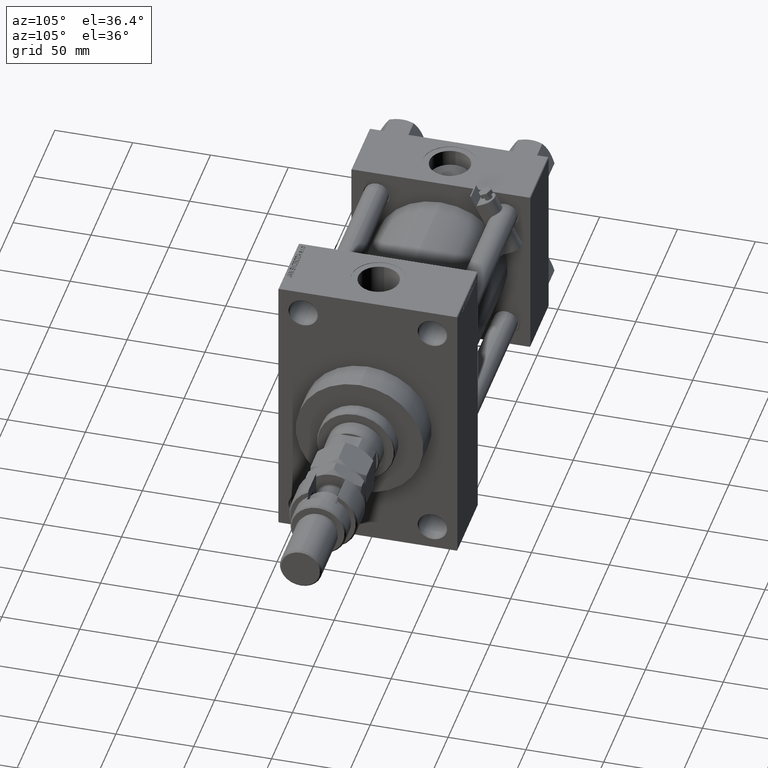
[diagram: clean part render]
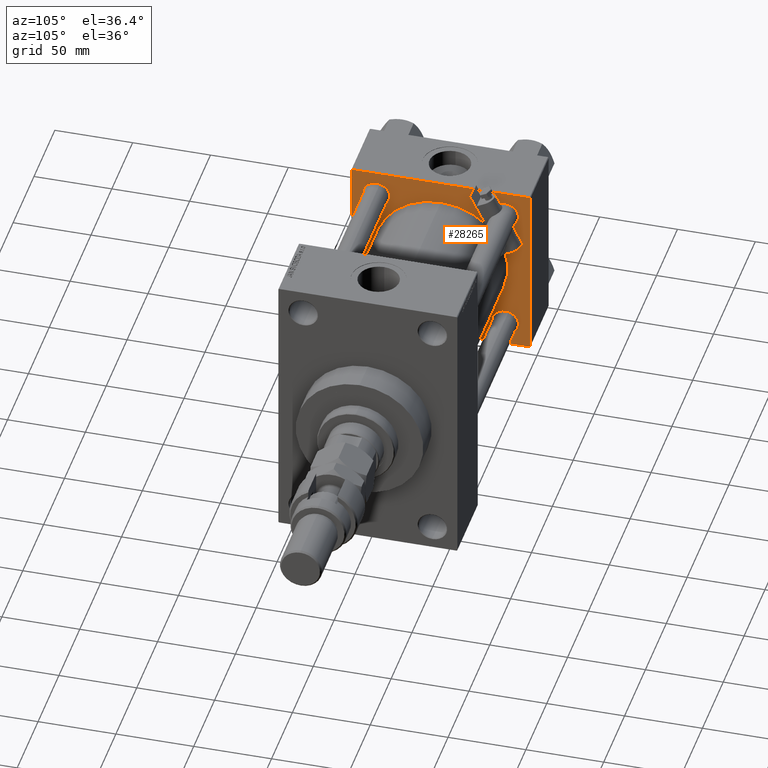
[diagram: same view with one face highlighted and labeled with its STEP entity id]
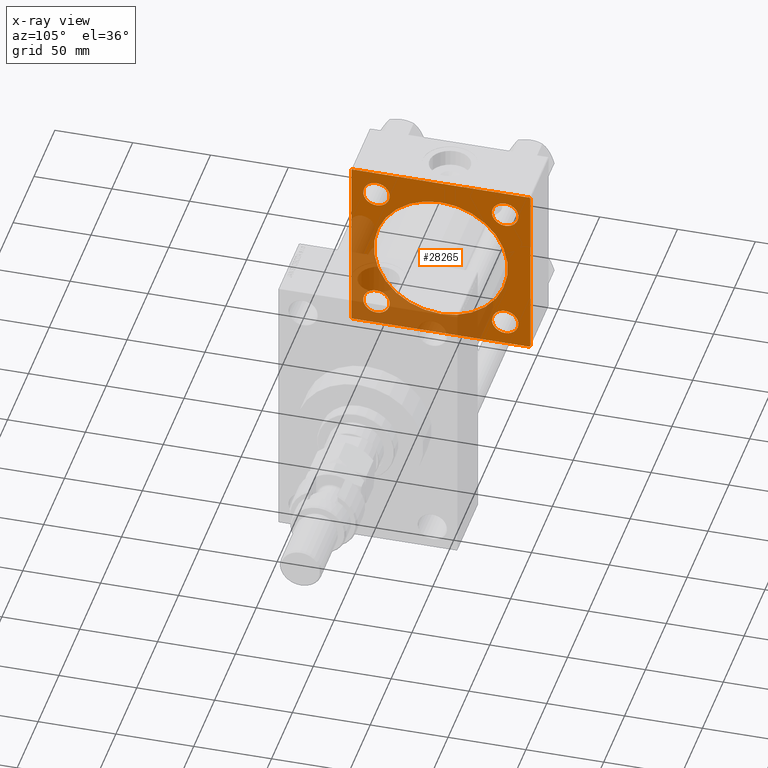
[diagram: x-ray of the same camera — body ghosted, the highlighted face saturated]
A machine part, auxiliary view. The second image highlights one B-rep face of the part: STEP entity #28265.
The next image is the same camera in x-ray: the body ghosted, the highlighted face saturated — about 38% of this face is hidden behind the body in this view.
In plain terms, the highlighted planar face has unit normal (-1, 0, 0).
Its self-contained STEP definition (entity closure, byte-faithful):
#150 = VERTEX_POINT ( 'NONE', #43804 ) ;
#160 = DIRECTION ( 'NONE',  ( 0.000000000000000000, -0.7071067811865573427, 0.7071067811865376918 ) ) ;
#539 = DIRECTION ( 'NONE',  ( 0.000000000000000000, 0.000000000000000000, 1.000000000000000000 ) ) ;
#1040 = AXIS2_PLACEMENT_3D ( 'NONE', #21779, #10552, #37693 ) ;
#1597 = CARTESIAN_POINT ( 'NONE',  ( 43.99999999999998579, 2.663896022368408223E-15, -43.00000000000000000 ) ) ;
#1702 = VERTEX_POINT ( 'NONE', #48117 ) ;
#2136 = VERTEX_POINT ( 'NONE', #38558 ) ;
#2597 = VECTOR ( 'NONE', #16361, 1000.000000000000000 ) ;
#3442 = DIRECTION ( 'NONE',  ( -1.000000000000000000, 0.000000000000000000, -0.000000000000000000 ) ) ;
#4048 = EDGE_CURVE ( 'NONE', #28603, #5955, #39495, .T. ) ;
#4233 = ORIENTED_EDGE ( 'NONE', *, *, #19425, .T. ) ;
#4278 = EDGE_LOOP ( 'NONE', ( #20201, #31155 ) ) ;
#4315 = EDGE_LOOP ( 'NONE', ( #5510, #7306 ) ) ;
#5040 = VERTEX_POINT ( 'NONE', #15763 ) ;
#5375 = ORIENTED_EDGE ( 'NONE', *, *, #28784, .T. ) ;
#5427 = AXIS2_PLACEMENT_3D ( 'NONE', #6863, #3442, #11281 ) ;
#5510 = ORIENTED_EDGE ( 'NONE', *, *, #37571, .T. ) ;
#5955 = VERTEX_POINT ( 'NONE', #40201 ) ;
#5987 = LINE ( 'NONE', #14331, #26862 ) ;
#6863 = CARTESIAN_POINT ( 'NONE',  ( 44.00000000000000000, -41.34999999999998721, -41.35000000000000853 ) ) ;
#6904 = DIRECTION ( 'NONE',  ( 0.000000000000000000, 0.000000000000000000, 1.000000000000000000 ) ) ;
#7020 = LINE ( 'NONE', #38840, #33585 ) ;
#7306 = ORIENTED_EDGE ( 'NONE', *, *, #27952, .T. ) ;
#7654 = VECTOR ( 'NONE', #30574, 1000.000000000000000 ) ;
#7685 = CIRCLE ( 'NONE', #1040, 8.500000000000007105 ) ;
#8014 = CARTESIAN_POINT ( 'NONE',  ( 44.00000000000000000, 57.49999999999999289, -57.49999999999999289 ) ) ;
#8264 = LINE ( 'NONE', #44279, #10444 ) ;
#8427 = FACE_OUTER_BOUND ( 'NONE', #15044, .T. ) ;
#8703 = ORIENTED_EDGE ( 'NONE', *, *, #17140, .T. ) ;
#9070 = EDGE_LOOP ( 'NONE', ( #4233, #42396 ) ) ;
#9172 = VECTOR ( 'NONE', #15755, 1000.000000000000000 ) ;
#9564 = CARTESIAN_POINT ( 'NONE',  ( 44.00000000000000000, 41.34999999999999432, 32.84999999999999432 ) ) ;
#9625 = CIRCLE ( 'NONE', #36281, 43.00000000000000000 ) ;
#10444 = VECTOR ( 'NONE', #160, 1000.000000000000114 ) ;
#10552 = DIRECTION ( 'NONE',  ( -1.000000000000000000, 0.000000000000000000, -0.000000000000000000 ) ) ;
#10652 = DIRECTION ( 'NONE',  ( 0.000000000000000000, 0.000000000000000000, 1.000000000000000000 ) ) ;
#11281 = DIRECTION ( 'NONE',  ( 0.000000000000000000, 0.000000000000000000, 1.000000000000000000 ) ) ;
#11657 = EDGE_LOOP ( 'NONE', ( #13132, #5375 ) ) ;
#12554 = VERTEX_POINT ( 'NONE', #16123 ) ;
#12569 = DIRECTION ( 'NONE',  ( 1.000000000000000000, -0.000000000000000000, 0.000000000000000000 ) ) ;
#12851 = DIRECTION ( 'NONE',  ( -0.000000000000000000, 0.000000000000000000, 1.000000000000000000 ) ) ;
#12987 = CARTESIAN_POINT ( 'NONE',  ( 44.00000000000000000, 41.34999999999999432, 49.85000000000001563 ) ) ;
#13132 = ORIENTED_EDGE ( 'NONE', *, *, #46413, .T. ) ;
#13800 = DIRECTION ( 'NONE',  ( -1.000000000000000000, 0.000000000000000000, -0.000000000000000000 ) ) ;
#14233 = ORIENTED_EDGE ( 'NONE', *, *, #24372, .T. ) ;
#14331 = CARTESIAN_POINT ( 'NONE',  ( 44.00000000000000000, 57.49999999999999289, -57.00000000000000711 ) ) ;
#14656 = CARTESIAN_POINT ( 'NONE',  ( 44.00000000000000000, -57.50000000000000711, 57.49999999999999289 ) ) ;
#14730 = ORIENTED_EDGE ( 'NONE', *, *, #26098, .T. ) ;
#14918 = VERTEX_POINT ( 'NONE', #46722 ) ;
#15044 = EDGE_LOOP ( 'NONE', ( #27816, #51490, #51448, #24098, #39213, #14730, #20187, #8703 ) ) ;
#15280 = CARTESIAN_POINT ( 'NONE',  ( 44.00000000000000000, 57.00000000000002132, -57.49999999999999289 ) ) ;
#15755 = DIRECTION ( 'NONE',  ( 0.000000000000000000, -1.000000000000000000, -1.206764157201257045E-16 ) ) ;
#15763 = CARTESIAN_POINT ( 'NONE',  ( 44.00000000000000000, -41.34999999999998721, -32.85000000000000142 ) ) ;
#16064 = LINE ( 'NONE', #23367, #23598 ) ;
#16123 = CARTESIAN_POINT ( 'NONE',  ( 44.00000000000000000, 41.34999999999999432, -49.85000000000001563 ) ) ;
#16265 = CARTESIAN_POINT ( 'NONE',  ( 44.00000000000000000, 0.000000000000000000, 0.000000000000000000 ) ) ;
#16361 = DIRECTION ( 'NONE',  ( 0.000000000000000000, -1.000000000000000000, -1.206764157201257045E-16 ) ) ;
#16747 = DIRECTION ( 'NONE',  ( 0.000000000000000000, 0.000000000000000000, 1.000000000000000000 ) ) ;
#16771 = PLANE ( 'NONE',  #21402 ) ;
#16780 = EDGE_CURVE ( 'NONE', #2136, #14918, #16064, .T. ) ;
#17140 = EDGE_CURVE ( 'NONE', #36875, #48812, #7020, .T. ) ;
#17942 = DIRECTION ( 'NONE',  ( -1.000000000000000000, 0.000000000000000000, -0.000000000000000000 ) ) ;
#18072 = VERTEX_POINT ( 'NONE', #31916 ) ;
#18188 = CARTESIAN_POINT ( 'NONE',  ( 44.00000000000000000, -41.34999999999998721, 41.35000000000000853 ) ) ;
#18584 = LINE ( 'NONE', #14656, #7654 ) ;
#18676 = EDGE_CURVE ( 'NONE', #150, #12554, #31166, .T. ) ;
#19021 = DIRECTION ( 'NONE',  ( 0.000000000000000000, 0.7071067811865474617, -0.7071067811865474617 ) ) ;
#19425 = EDGE_CURVE ( 'NONE', #12554, #150, #23677, .T. ) ;
#19475 = EDGE_LOOP ( 'NONE', ( #20653, #14233 ) ) ;
#19680 = CARTESIAN_POINT ( 'NONE',  ( 44.00000000000000000, 57.49999999999999289, 57.50000000000000711 ) ) ;
#20179 = DIRECTION ( 'NONE',  ( -1.000000000000000000, 0.000000000000000000, -0.000000000000000000 ) ) ;
#20187 = ORIENTED_EDGE ( 'NONE', *, *, #43051, .T. ) ;
#20201 = ORIENTED_EDGE ( 'NONE', *, *, #50830, .F. ) ;
#20280 = LINE ( 'NONE', #8014, #2597 ) ;
#20653 = ORIENTED_EDGE ( 'NONE', *, *, #43948, .T. ) ;
#21161 = VERTEX_POINT ( 'NONE', #15280 ) ;
#21402 = AXIS2_PLACEMENT_3D ( 'NONE', #16265, #20179, #12851 ) ;
#21779 = CARTESIAN_POINT ( 'NONE',  ( 44.00000000000000000, -41.34999999999998721, -41.35000000000000853 ) ) ;
#22253 = CARTESIAN_POINT ( 'NONE',  ( 44.00000000000000000, 57.00000000000000711, 57.50000000000000711 ) ) ;
#22719 = VERTEX_POINT ( 'NONE', #47447 ) ;
#23367 = CARTESIAN_POINT ( 'NONE',  ( 44.00000000000000000, 57.49999999999999289, 57.50000000000000711 ) ) ;
#23598 = VECTOR ( 'NONE', #32236, 1000.000000000000000 ) ;
#23677 = CIRCLE ( 'NONE', #41152, 8.500000000000007105 ) ;
#23827 = FACE_BOUND ( 'NONE', #4278, .T. ) ;
#24098 = ORIENTED_EDGE ( 'NONE', *, *, #24844, .T. ) ;
#24191 = DIRECTION ( 'NONE',  ( -0.000000000000000000, -0.7071067811865376918, -0.7071067811865573427 ) ) ;
#24372 = EDGE_CURVE ( 'NONE', #5040, #41285, #37075, .T. ) ;
#24648 = VECTOR ( 'NONE', #24191, 1000.000000000000114 ) ;
#24677 = VERTEX_POINT ( 'NONE', #48244 ) ;
#24708 = CARTESIAN_POINT ( 'NONE',  ( 44.00000000000000000, -57.50000000000000711, 57.00000000000000711 ) ) ;
#24844 = EDGE_CURVE ( 'NONE', #2136, #28603, #8264, .T. ) ;
#25513 = CARTESIAN_POINT ( 'NONE',  ( 44.00000000000000000, 41.34999999999999432, -41.35000000000000142 ) ) ;
#25766 = DIRECTION ( 'NONE',  ( 0.000000000000000000, 0.000000000000000000, 1.000000000000000000 ) ) ;
#26098 = EDGE_CURVE ( 'NONE', #5955, #18072, #47933, .T. ) ;
#26186 = AXIS2_PLACEMENT_3D ( 'NONE', #50463, #33772, #6904 ) ;
#26324 = CARTESIAN_POINT ( 'NONE',  ( 44.00000000000000000, 41.34999999999999432, 41.35000000000000142 ) ) ;
#26862 = VECTOR ( 'NONE', #30251, 1000.000000000000114 ) ;
#27525 = VERTEX_POINT ( 'NONE', #1597 ) ;
#27631 = AXIS2_PLACEMENT_3D ( 'NONE', #35592, #31701, #39774 ) ;
#27750 = FACE_BOUND ( 'NONE', #4315, .T. ) ;
#27816 = ORIENTED_EDGE ( 'NONE', *, *, #37323, .F. ) ;
#27952 = EDGE_CURVE ( 'NONE', #22719, #1702, #40542, .T. ) ;
#28109 = CIRCLE ( 'NONE', #43929, 8.500000000000007105 ) ;
#28265 = ADVANCED_FACE ( 'NONE', ( #35812, #32688, #27750, #48334, #23827, #8427 ), #16771, .F. ) ;
#28603 = VERTEX_POINT ( 'NONE', #22253 ) ;
#28784 = EDGE_CURVE ( 'NONE', #43424, #46773, #28109, .T. ) ;
#30251 = DIRECTION ( 'NONE',  ( -0.000000000000000000, 0.7071067811865376918, 0.7071067811865573427 ) ) ;
#30574 = DIRECTION ( 'NONE',  ( 0.000000000000000000, 0.000000000000000000, -1.000000000000000000 ) ) ;
#31155 = ORIENTED_EDGE ( 'NONE', *, *, #35210, .F. ) ;
#31166 = CIRCLE ( 'NONE', #26186, 8.500000000000007105 ) ;
#31701 = DIRECTION ( 'NONE',  ( -1.000000000000000000, 0.000000000000000000, -0.000000000000000000 ) ) ;
#31748 = DIRECTION ( 'NONE',  ( 1.000000000000000000, -0.000000000000000000, 0.000000000000000000 ) ) ;
#31916 = CARTESIAN_POINT ( 'NONE',  ( 44.00000000000000000, -57.50000000000000711, 57.00000000000000711 ) ) ;
#32236 = DIRECTION ( 'NONE',  ( 0.000000000000000000, 0.000000000000000000, -1.000000000000000000 ) ) ;
#32688 = FACE_BOUND ( 'NONE', #9070, .T. ) ;
#33585 = VECTOR ( 'NONE', #19021, 1000.000000000000114 ) ;
#33772 = DIRECTION ( 'NONE',  ( -1.000000000000000000, 0.000000000000000000, -0.000000000000000000 ) ) ;
#34088 = DIRECTION ( 'NONE',  ( -1.000000000000000000, 0.000000000000000000, -0.000000000000000000 ) ) ;
#35210 = EDGE_CURVE ( 'NONE', #27525, #24677, #49969, .T. ) ;
#35592 = CARTESIAN_POINT ( 'NONE',  ( 44.00000000000000000, -41.34999999999998721, 41.35000000000000853 ) ) ;
#35637 = CARTESIAN_POINT ( 'NONE',  ( 43.99999999999998579, -2.602085213965210642E-15, 0.000000000000000000 ) ) ;
#35812 = FACE_BOUND ( 'NONE', #19475, .T. ) ;
#36281 = AXIS2_PLACEMENT_3D ( 'NONE', #35637, #31748, #44001 ) ;
#36875 = VERTEX_POINT ( 'NONE', #40676 ) ;
#37075 = CIRCLE ( 'NONE', #5427, 8.500000000000007105 ) ;
#37323 = EDGE_CURVE ( 'NONE', #21161, #48812, #20280, .T. ) ;
#37571 = EDGE_CURVE ( 'NONE', #1702, #22719, #47587, .T. ) ;
#37693 = DIRECTION ( 'NONE',  ( 0.000000000000000000, 0.000000000000000000, 1.000000000000000000 ) ) ;
#38318 = AXIS2_PLACEMENT_3D ( 'NONE', #48312, #12569, #16747 ) ;
#38558 = CARTESIAN_POINT ( 'NONE',  ( 44.00000000000000000, 57.49999999999999289, 57.00000000000003553 ) ) ;
#38652 = AXIS2_PLACEMENT_3D ( 'NONE', #26324, #13800, #10652 ) ;
#38807 = CARTESIAN_POINT ( 'NONE',  ( 44.00000000000000000, -57.00000000000000711, -57.50000000000000711 ) ) ;
#38840 = CARTESIAN_POINT ( 'NONE',  ( 44.00000000000000000, -57.00000000000000711, -57.50000000000000711 ) ) ;
#39213 = ORIENTED_EDGE ( 'NONE', *, *, #4048, .T. ) ;
#39222 = EDGE_CURVE ( 'NONE', #21161, #14918, #5987, .T. ) ;
#39495 = LINE ( 'NONE', #19680, #9172 ) ;
#39774 = DIRECTION ( 'NONE',  ( 0.000000000000000000, 0.000000000000000000, 1.000000000000000000 ) ) ;
#39821 = CARTESIAN_POINT ( 'NONE',  ( 44.00000000000000000, -41.34999999999998721, -49.85000000000002274 ) ) ;
#40201 = CARTESIAN_POINT ( 'NONE',  ( 44.00000000000000000, -57.00000000000003553, 57.49999999999999289 ) ) ;
#40542 = CIRCLE ( 'NONE', #46392, 8.500000000000007105 ) ;
#40676 = CARTESIAN_POINT ( 'NONE',  ( 44.00000000000000000, -57.50000000000000711, -57.00000000000000711 ) ) ;
#41152 = AXIS2_PLACEMENT_3D ( 'NONE', #25513, #17942, #25766 ) ;
#41285 = VERTEX_POINT ( 'NONE', #39821 ) ;
#42396 = ORIENTED_EDGE ( 'NONE', *, *, #18676, .T. ) ;
#43051 = EDGE_CURVE ( 'NONE', #18072, #36875, #18584, .T. ) ;
#43424 = VERTEX_POINT ( 'NONE', #12987 ) ;
#43804 = CARTESIAN_POINT ( 'NONE',  ( 44.00000000000000000, 41.34999999999999432, -32.84999999999999432 ) ) ;
#43929 = AXIS2_PLACEMENT_3D ( 'NONE', #44394, #45154, #539 ) ;
#43948 = EDGE_CURVE ( 'NONE', #41285, #5040, #7685, .T. ) ;
#44001 = DIRECTION ( 'NONE',  ( 0.000000000000000000, 0.000000000000000000, 1.000000000000000000 ) ) ;
#44279 = CARTESIAN_POINT ( 'NONE',  ( 44.00000000000000000, 57.00000000000000711, 57.50000000000000711 ) ) ;
#44394 = CARTESIAN_POINT ( 'NONE',  ( 44.00000000000000000, 41.34999999999999432, 41.35000000000000142 ) ) ;
#45154 = DIRECTION ( 'NONE',  ( -1.000000000000000000, 0.000000000000000000, -0.000000000000000000 ) ) ;
#46392 = AXIS2_PLACEMENT_3D ( 'NONE', #18188, #34088, #50007 ) ;
#46413 = EDGE_CURVE ( 'NONE', #46773, #43424, #50338, .T. ) ;
#46722 = CARTESIAN_POINT ( 'NONE',  ( 44.00000000000000000, 57.49999999999999289, -57.00000000000000711 ) ) ;
#46773 = VERTEX_POINT ( 'NONE', #9564 ) ;
#47447 = CARTESIAN_POINT ( 'NONE',  ( 44.00000000000000000, -41.34999999999998721, 49.85000000000002274 ) ) ;
#47587 = CIRCLE ( 'NONE', #27631, 8.500000000000007105 ) ;
#47933 = LINE ( 'NONE', #24708, #24648 ) ;
#48117 = CARTESIAN_POINT ( 'NONE',  ( 44.00000000000000000, -41.34999999999998721, 32.85000000000000142 ) ) ;
#48244 = CARTESIAN_POINT ( 'NONE',  ( 43.99999999999998579, -2.602085213965210642E-15, 43.00000000000000000 ) ) ;
#48312 = CARTESIAN_POINT ( 'NONE',  ( 43.99999999999998579, -2.602085213965210642E-15, 0.000000000000000000 ) ) ;
#48334 = FACE_BOUND ( 'NONE', #11657, .T. ) ;
#48812 = VERTEX_POINT ( 'NONE', #38807 ) ;
#49969 = CIRCLE ( 'NONE', #38318, 43.00000000000000000 ) ;
#50007 = DIRECTION ( 'NONE',  ( 0.000000000000000000, 0.000000000000000000, 1.000000000000000000 ) ) ;
#50338 = CIRCLE ( 'NONE', #38652, 8.500000000000007105 ) ;
#50463 = CARTESIAN_POINT ( 'NONE',  ( 44.00000000000000000, 41.34999999999999432, -41.35000000000000142 ) ) ;
#50830 = EDGE_CURVE ( 'NONE', #24677, #27525, #9625, .T. ) ;
#51448 = ORIENTED_EDGE ( 'NONE', *, *, #16780, .F. ) ;
#51490 = ORIENTED_EDGE ( 'NONE', *, *, #39222, .T. ) ;